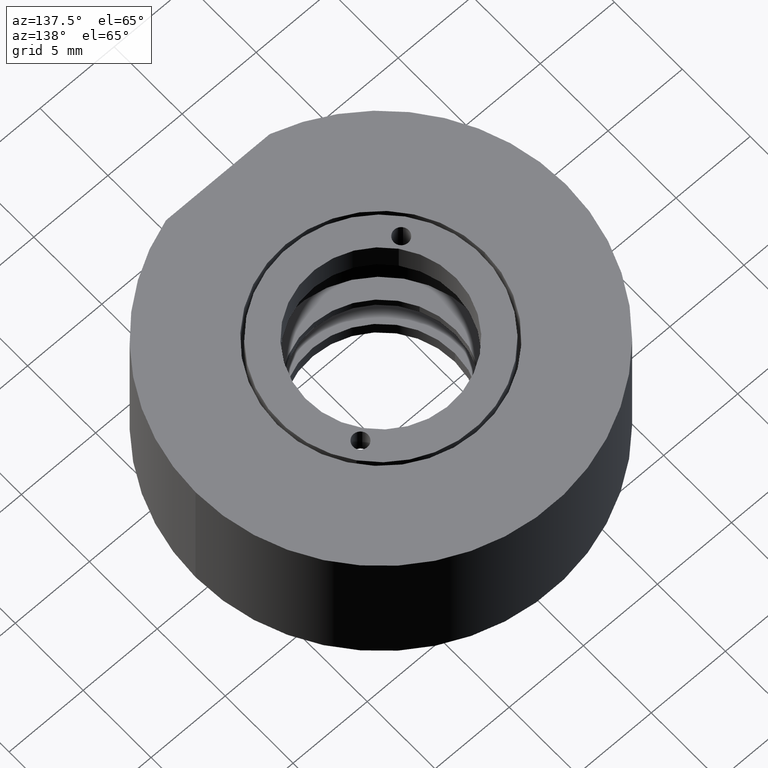
[diagram: clean part render]
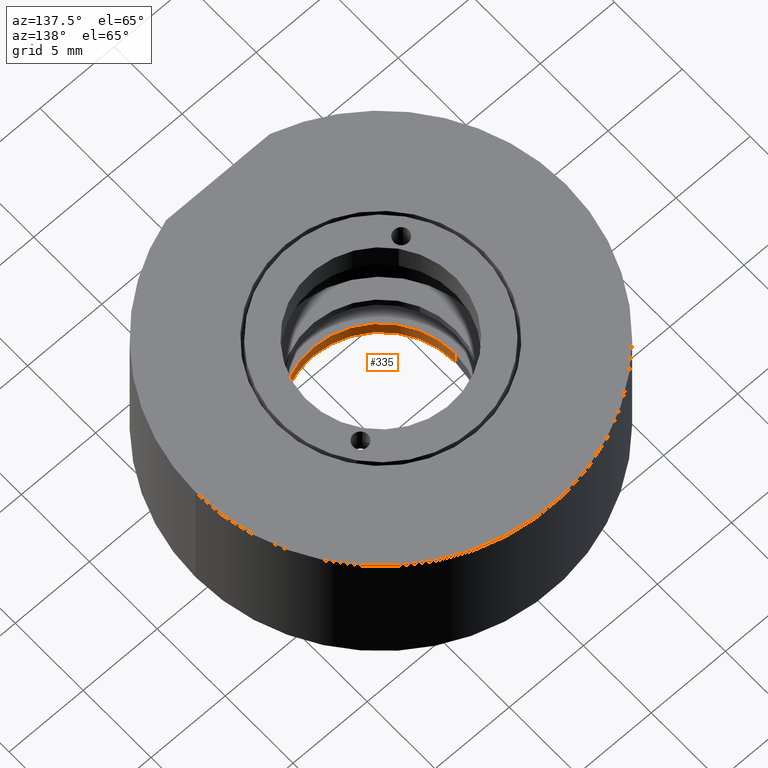
[diagram: same view with one face highlighted and labeled with its STEP entity id]
A machine part, auxiliary view. The second image highlights one B-rep face of the part: STEP entity #335.
In plain terms, the highlighted cylindrical surface (partial cylindrical patch) has radius 5 mm, axis along (-0, -0, -1).
Its self-contained STEP definition (entity closure, byte-faithful):
#14 = ORIENTED_EDGE ( 'NONE', *, *, #519, .F. ) ;
#28 = ORIENTED_EDGE ( 'NONE', *, *, #226, .F. ) ;
#36 = CARTESIAN_POINT ( 'NONE',  ( -10.64545028811109300, 4.389876407468493700, -6.499999999999999100 ) ) ;
#46 = EDGE_CURVE ( 'NONE', #905, #612, #194, .T. ) ;
#47 = DIRECTION ( 'NONE',  ( 0.0000000000000000000, 0.0000000000000000000, 1.000000000000000000 ) ) ;
#48 = CARTESIAN_POINT ( 'NONE',  ( -5.645450288111092600, 4.389876407468494600, -6.499999999999999100 ) ) ;
#52 = ORIENTED_EDGE ( 'NONE', *, *, #46, .T. ) ;
#75 = CARTESIAN_POINT ( 'NONE',  ( -10.64545028811109300, 4.389876407468493700, 2.500000000000000400 ) ) ;
#81 = LINE ( 'NONE', #220, #563 ) ;
#91 = AXIS2_PLACEMENT_3D ( 'NONE', #75, #160, #770 ) ;
#92 = EDGE_CURVE ( 'NONE', #301, #905, #434, .T. ) ;
#160 = DIRECTION ( 'NONE',  ( -0.0000000000000000000, -0.0000000000000000000, -1.000000000000000000 ) ) ;
#194 = LINE ( 'NONE', #321, #894 ) ;
#213 = CARTESIAN_POINT ( 'NONE',  ( -15.64545028811109300, 4.389876407468493700, -7.500000000000000000 ) ) ;
#216 = FACE_OUTER_BOUND ( 'NONE', #661, .T. ) ;
#218 = VERTEX_POINT ( 'NONE', #213 ) ;
#220 = CARTESIAN_POINT ( 'NONE',  ( -15.64545028811109300, 4.389876407468493700, 2.500000000000000400 ) ) ;
#226 = EDGE_CURVE ( 'NONE', #218, #612, #551, .T. ) ;
#262 = AXIS2_PLACEMENT_3D ( 'NONE', #36, #492, #569 ) ;
#301 = VERTEX_POINT ( 'NONE', #689 ) ;
#313 = CARTESIAN_POINT ( 'NONE',  ( -5.645450288111092600, 4.389876407468494600, -7.500000000000000000 ) ) ;
#321 = CARTESIAN_POINT ( 'NONE',  ( -5.645450288111092600, 4.389876407468494600, 2.500000000000000400 ) ) ;
#328 = DIRECTION ( 'NONE',  ( -0.0000000000000000000, -0.0000000000000000000, -1.000000000000000000 ) ) ;
#335 = ADVANCED_FACE ( 'NONE', ( #216 ), #866, .F. ) ;
#434 = CIRCLE ( 'NONE', #262, 5.000000000000000000 ) ;
#492 = DIRECTION ( 'NONE',  ( 0.0000000000000000000, 0.0000000000000000000, 1.000000000000000000 ) ) ;
#519 = EDGE_CURVE ( 'NONE', #301, #218, #81, .T. ) ;
#551 = CIRCLE ( 'NONE', #760, 5.000000000000000000 ) ;
#563 = VECTOR ( 'NONE', #678, 1000.000000000000000 ) ;
#569 = DIRECTION ( 'NONE',  ( 1.000000000000000000, 0.0000000000000000000, 0.0000000000000000000 ) ) ;
#591 = ORIENTED_EDGE ( 'NONE', *, *, #92, .T. ) ;
#612 = VERTEX_POINT ( 'NONE', #313 ) ;
#661 = EDGE_LOOP ( 'NONE', ( #591, #52, #28, #14 ) ) ;
#678 = DIRECTION ( 'NONE',  ( -0.0000000000000000000, -0.0000000000000000000, -1.000000000000000000 ) ) ;
#689 = CARTESIAN_POINT ( 'NONE',  ( -15.64545028811109300, 4.389876407468493700, -6.499999999999999100 ) ) ;
#728 = DIRECTION ( 'NONE',  ( 1.000000000000000000, 0.0000000000000000000, 0.0000000000000000000 ) ) ;
#745 = CARTESIAN_POINT ( 'NONE',  ( -10.64545028811109300, 4.389876407468493700, -7.500000000000000000 ) ) ;
#760 = AXIS2_PLACEMENT_3D ( 'NONE', #745, #47, #728 ) ;
#770 = DIRECTION ( 'NONE',  ( -1.000000000000000000, 0.0000000000000000000, 0.0000000000000000000 ) ) ;
#866 = CYLINDRICAL_SURFACE ( 'NONE', #91, 4.999999999999999100 ) ;
#894 = VECTOR ( 'NONE', #328, 1000.000000000000000 ) ;
#905 = VERTEX_POINT ( 'NONE', #48 ) ;